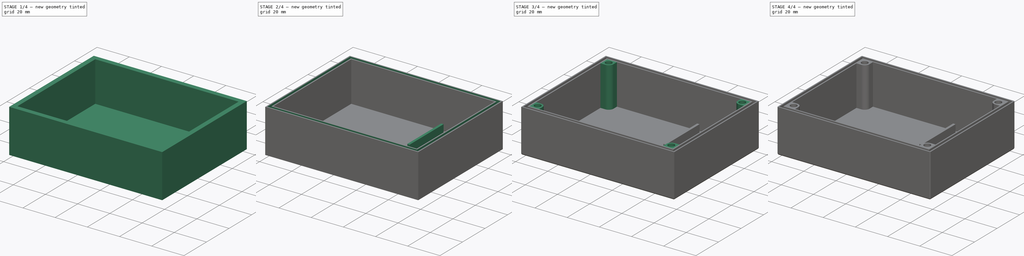
[diagram: build sequence overview — one tinted view per stage of 4, left to right]
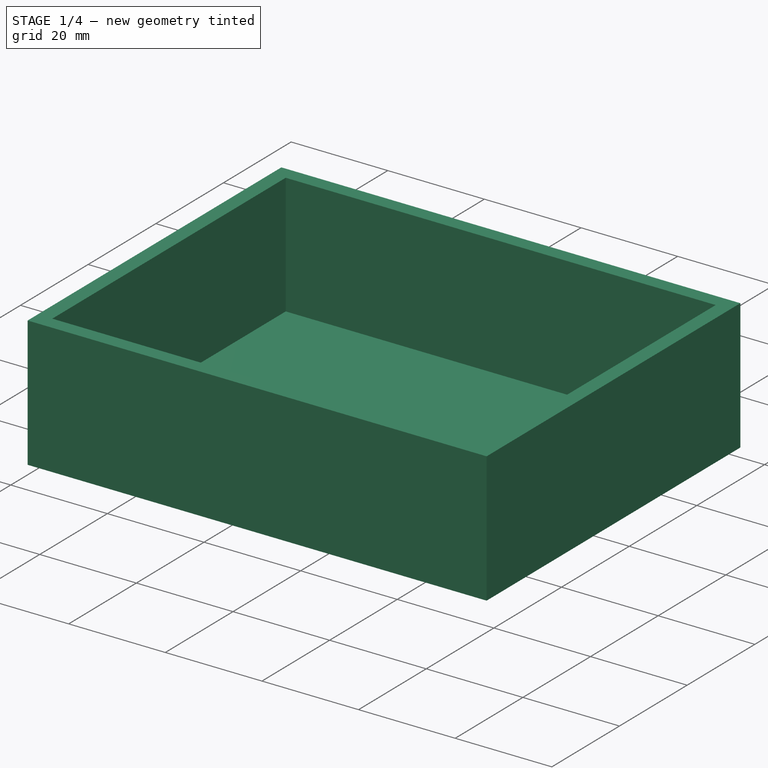
[diagram: stage 1 of 4 — iso view after this stage's code; geometry added in this stage tinted green]
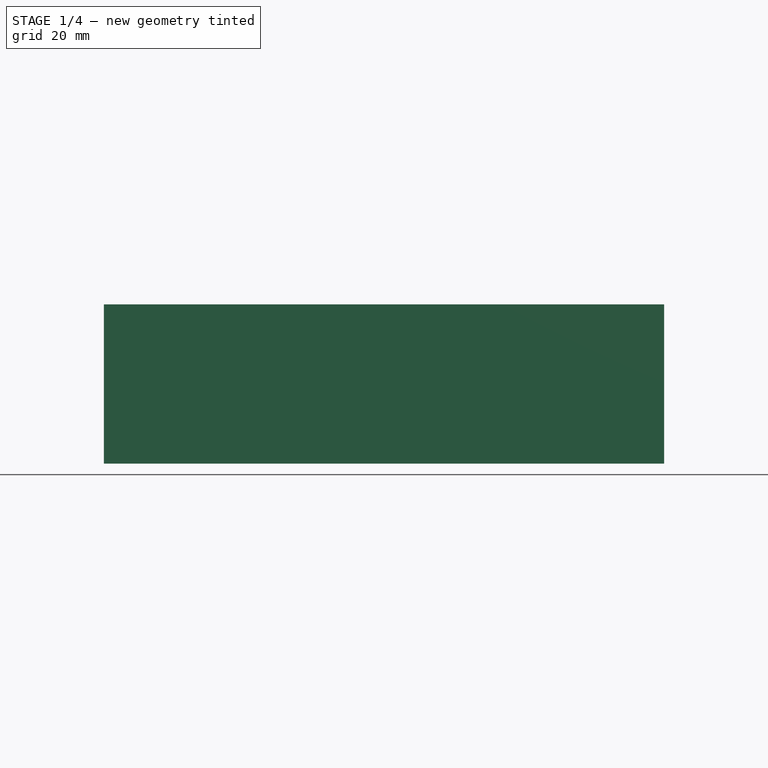
[diagram: stage 1 of 4 — front view after this stage's code; geometry added in this stage tinted green]
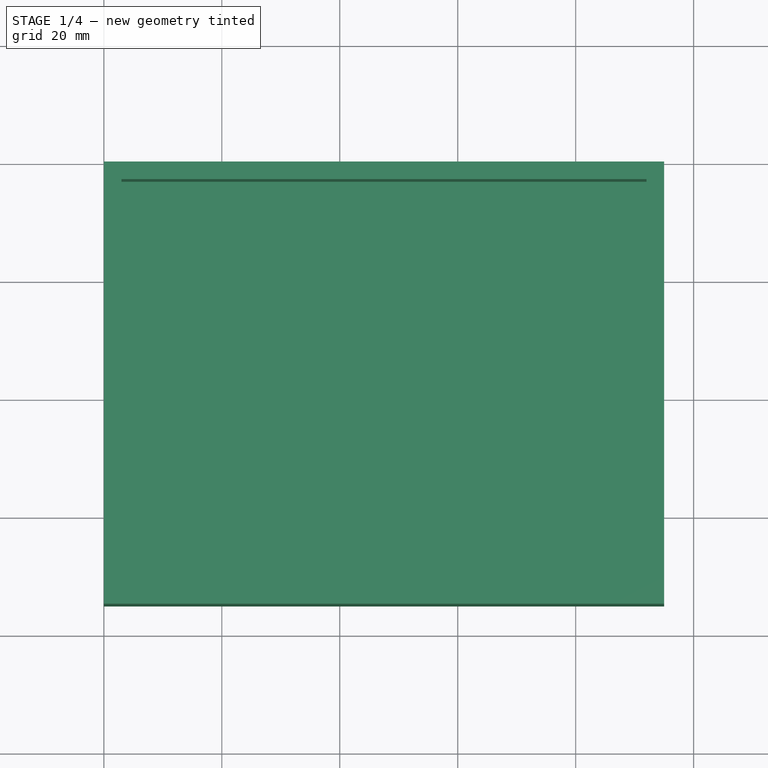
[diagram: stage 1 of 4 — top view after this stage's code; geometry added in this stage tinted green]
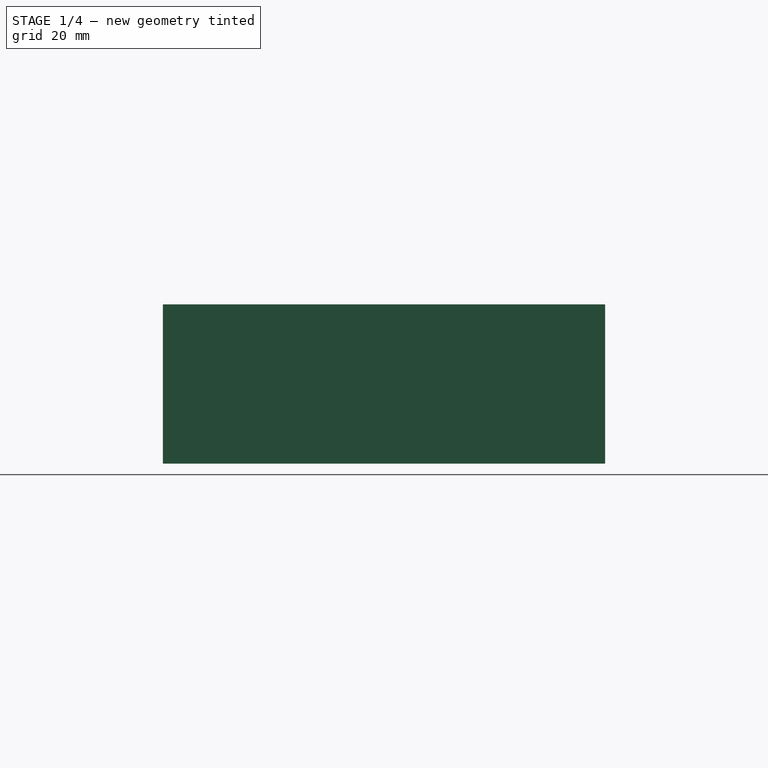
[diagram: stage 1 of 4 — right view after this stage's code; geometry added in this stage tinted green]
FCSTD DOCUMENT  (FreeCAD 0.18R16146 (Git))
Label: bottom
License: All rights reserved
LicenseURL: http://en.wikipedia.org/wiki/All_rights_reserved
objects: Sketcher::SketchObject×6, PartDesign::Pad×3, PartDesign::Pocket×3, Part::Fillet×3, PartDesign::Body×1
note: 22 computed .brp shape members not serialized (recipe doc carries the construction recipe); baked Part::Feature solids carry a one-line shape summary decoded from their .brp

FEATURE [Sketcher::SketchObject] Sketch
  MapMode = 5
  Support = -> [XY_Plane]
  sketch-geometry (4):
    g0: LineSegment StartX=0 StartY=1e-16 StartZ=0 EndX=95 EndY=1e-16 EndZ=0
    g1: LineSegment StartX=95 StartY=1e-16 StartZ=0 EndX=95 EndY=-75 EndZ=0
    g2: LineSegment StartX=95 StartY=-75 StartZ=0 EndX=0 EndY=-75 EndZ=0
    g3: LineSegment StartX=0 StartY=-75 StartZ=0 EndX=0 EndY=0 EndZ=0
  constraints (11):
    c: Coincident(g0,g1)
    c: Coincident(g1,g2)
    c: Coincident(g2,g3)
    c: Coincident(g3,g0)
    c: Horizontal(g0)
    c: Horizontal(g2)
    c: Vertical(g1)
    c: Vertical(g3)
    c: DistanceX(g0,g0) = 95
    c: DistanceY(g1,g1) = 75
    c: Coincident(g0,g-1)
FEATURE [PartDesign::Pad] Pad
  Length = 27
  Length2 = 100
  Profile = -> Sketch
  Type = 0
FEATURE [Sketcher::SketchObject] Sketch001
  ExternalGeometry = -> [Sketch]
  MapMode = 5
  Placement = pos=(0,0,27) rot=(0,0,1;0rad)
  Support = -> [Pad]
  sketch-geometry (4):
    g0: LineSegment StartX=3 StartY=-3 StartZ=0 EndX=92 EndY=-3 EndZ=0
    g1: LineSegment StartX=92 StartY=-3 StartZ=0 EndX=92 EndY=-72 EndZ=0
    g2: LineSegment StartX=92 StartY=-72 StartZ=0 EndX=3 EndY=-72 EndZ=0
    g3: LineSegment StartX=3 StartY=-72 StartZ=0 EndX=3 EndY=-3 EndZ=0
  constraints (12):
    c: Coincident(g0,g1)
    c: Coincident(g1,g2)
    c: Coincident(g2,g3)
    c: Coincident(g3,g0)
    c: Horizontal(g0)
    c: Horizontal(g2)
    c: Vertical(g1)
    c: Vertical(g3)
    c: DistanceY(g-5,g2) = 3
    c: DistanceX(g-1,g0) = 3
    c: DistanceY(g0,g-6) = 3
    c: DistanceX(g1,g-4) = 3
FEATURE [PartDesign::Pocket] Pocket
  BaseFeature = -> Pad
  Length = 25
  Length2 = 100
  Profile = -> Sketch001
  Type = 0
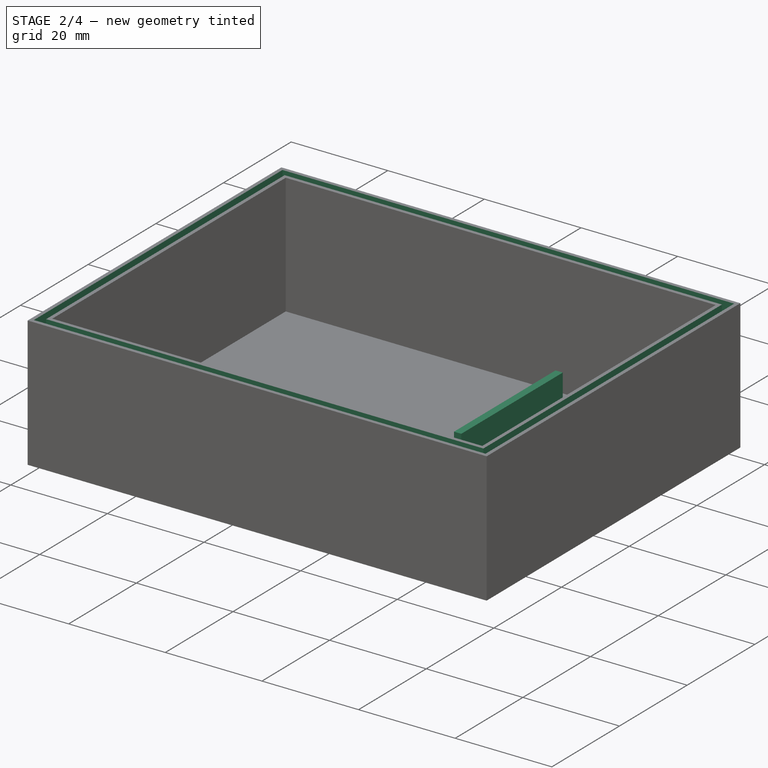
[diagram: stage 2 of 4 — iso view after this stage's code; geometry added in this stage tinted green]
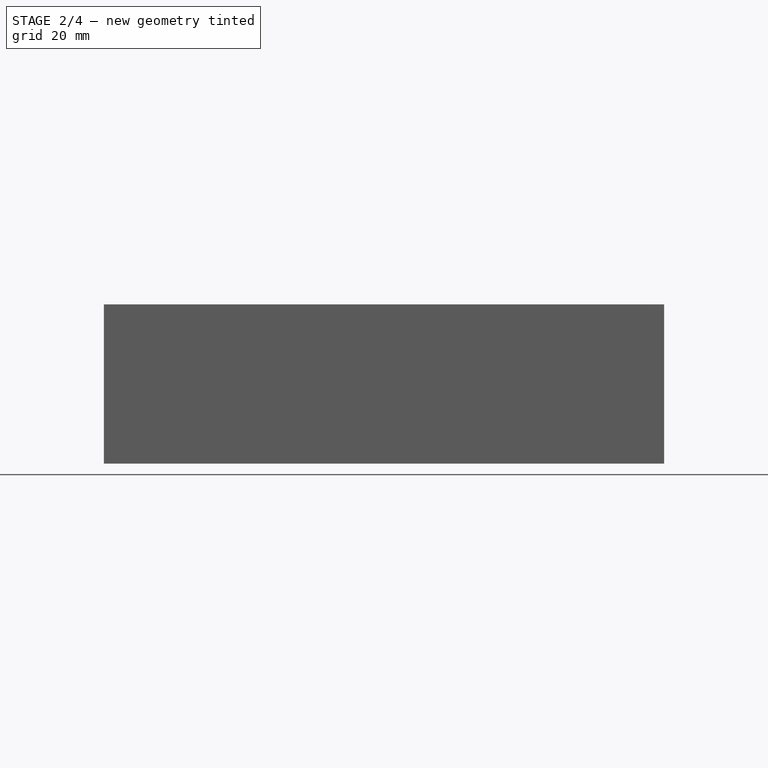
[diagram: stage 2 of 4 — front view after this stage's code; geometry added in this stage tinted green]
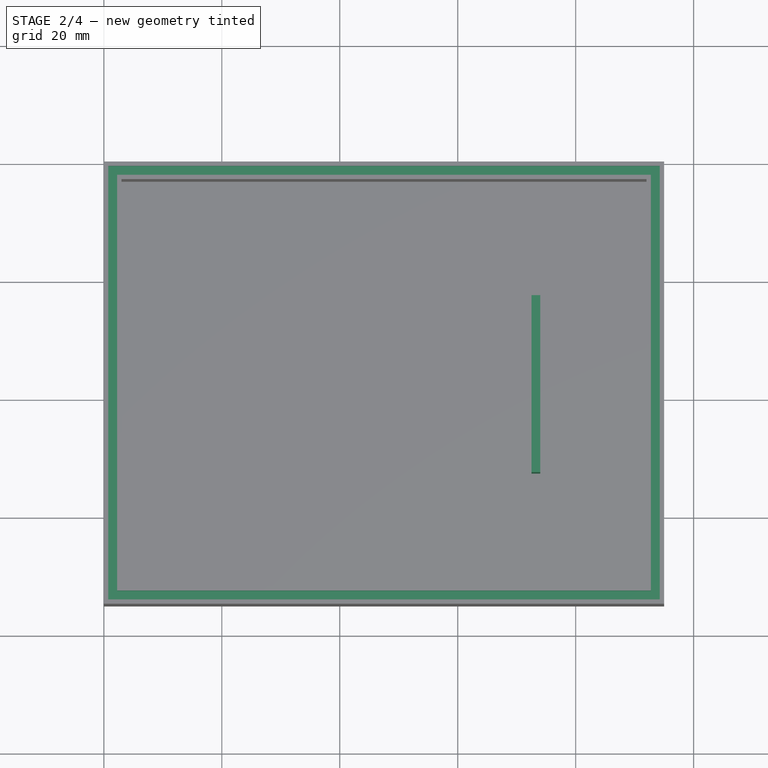
[diagram: stage 2 of 4 — top view after this stage's code; geometry added in this stage tinted green]
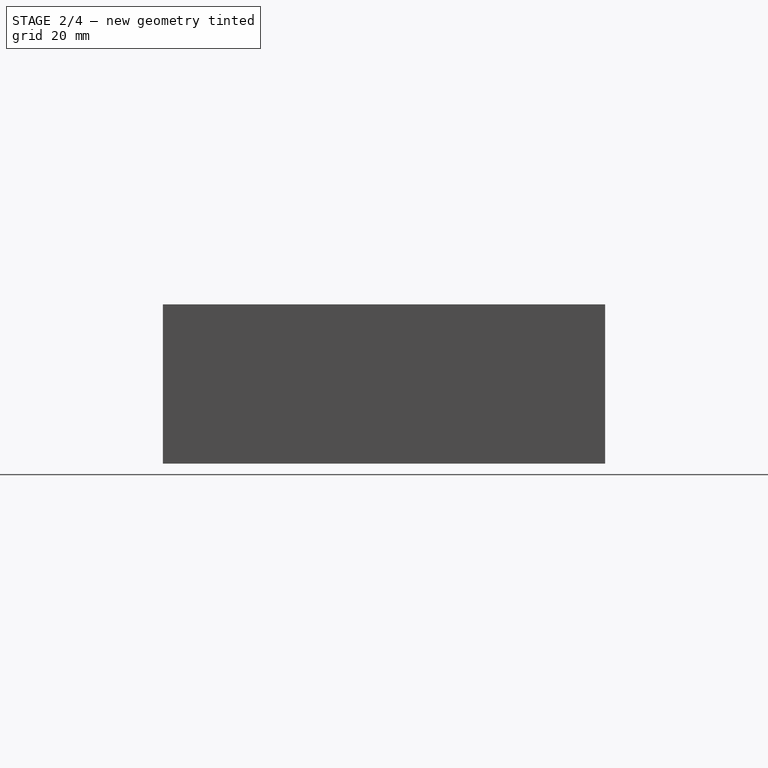
[diagram: stage 2 of 4 — right view after this stage's code; geometry added in this stage tinted green]
FEATURE [Sketcher::SketchObject] Sketch002
  ExternalGeometry = -> [Sketch001,Sketch]
  MapMode = 5
  Placement = pos=(0,0,2) rot=(0,0,1;0rad)
  Support = -> [Pocket]
  sketch-geometry (5):
    g0: LineSegment StartX=72.5 StartY=-22.5 StartZ=0 EndX=74 EndY=-22.5 EndZ=0
    g1: LineSegment StartX=74 StartY=-22.5 StartZ=0 EndX=74 EndY=-52.5 EndZ=0
    g2: LineSegment StartX=74 StartY=-52.5 StartZ=0 EndX=72.5 EndY=-52.5 EndZ=0
    g3: LineSegment StartX=72.5 StartY=-52.5 StartZ=0 EndX=72.5 EndY=-22.5 EndZ=0
    g4: LineSegment [constr] StartX=3 StartY=-37.5 StartZ=0 EndX=92 EndY=-37.5 EndZ=0
  constraints (13):
    c: Coincident(g1,g2)
    c: Coincident(g2,g3)
    c: Coincident(g3,g0)
    c: Horizontal(g0)
    c: Horizontal(g2)
    c: Vertical(g3)
    c: DistanceX(g0,g0) = 1.5
    c: DistanceY(g3,g3) = 30
    c: Symmetric(g-8,g-8,g4)
    c: Coincident(g1,g0)
    c: Symmetric(g0,g1,g4)
    c: Symmetric(g-4,g-3,g4)
    c: DistanceX(g0,g-4) = 18
FEATURE [PartDesign::Pad] Pad001
  BaseFeature = -> Pocket
  Length = 15
  Length2 = 100
  Profile = -> Sketch002
  Type = 0
FEATURE [Sketcher::SketchObject] Sketch004
  ExternalGeometry = -> [Sketch,Sketch001]
  MapMode = 5
  Placement = pos=(0,0,27) rot=(0,0,1;0rad)
  Support = -> [Pad001]
  sketch-geometry (8):
    g0: LineSegment StartX=0.75 StartY=-0.75 StartZ=0 EndX=94.25 EndY=-0.75 EndZ=0
    g1: LineSegment StartX=94.25 StartY=-0.75 StartZ=0 EndX=94.25 EndY=-74.25 EndZ=0
    g2: LineSegment StartX=94.25 StartY=-74.25 StartZ=0 EndX=0.75 EndY=-74.25 EndZ=0
    g3: LineSegment StartX=0.75 StartY=-74.25 StartZ=0 EndX=0.75 EndY=-0.75 EndZ=0
    g4: LineSegment StartX=2.25 StartY=-2.25 StartZ=0 EndX=92.75 EndY=-2.25 EndZ=0
    g5: LineSegment StartX=92.75 StartY=-2.25 StartZ=0 EndX=92.75 EndY=-72.75 EndZ=0
    g6: LineSegment StartX=92.75 StartY=-72.75 StartZ=0 EndX=2.25 EndY=-72.75 EndZ=0
    g7: LineSegment StartX=2.25 StartY=-72.75 StartZ=0 EndX=2.25 EndY=-2.25 EndZ=0
  constraints (24):
    c: Coincident(g0,g1)
    c: Coincident(g1,g2)
    c: Coincident(g2,g3)
    c: Coincident(g3,g0)
    c: Horizontal(g0)
    c: Horizontal(g2)
    c: Vertical(g1)
    c: Vertical(g3)
    c: DistanceY(g0,g-7) = 0.75
    c: DistanceX(g0,g-7) = 0.75
    c: DistanceX(g-10,g2) = 0.75
    c: DistanceY(g-10,g2) = 0.75
    c: Coincident(g4,g5)
    c: Coincident(g5,g6)
    c: Coincident(g6,g7)
    c: Coincident(g7,g4)
    c: Horizontal(g4)
    c: Horizontal(g6)
    c: Vertical(g5)
    c: Vertical(g7)
    c: DistanceY(g-6,g4) = 0.75
    c: DistanceX(g4,g-6) = 0.75
    c: DistanceX(g-9,g5) = 0.75
    c: DistanceY(g5,g-9) = 0.75
FEATURE [PartDesign::Pocket] Pocket001
  BaseFeature = -> Pad001
  Length = 2
  Length2 = 100
  Profile = -> Sketch004
  Type = 0
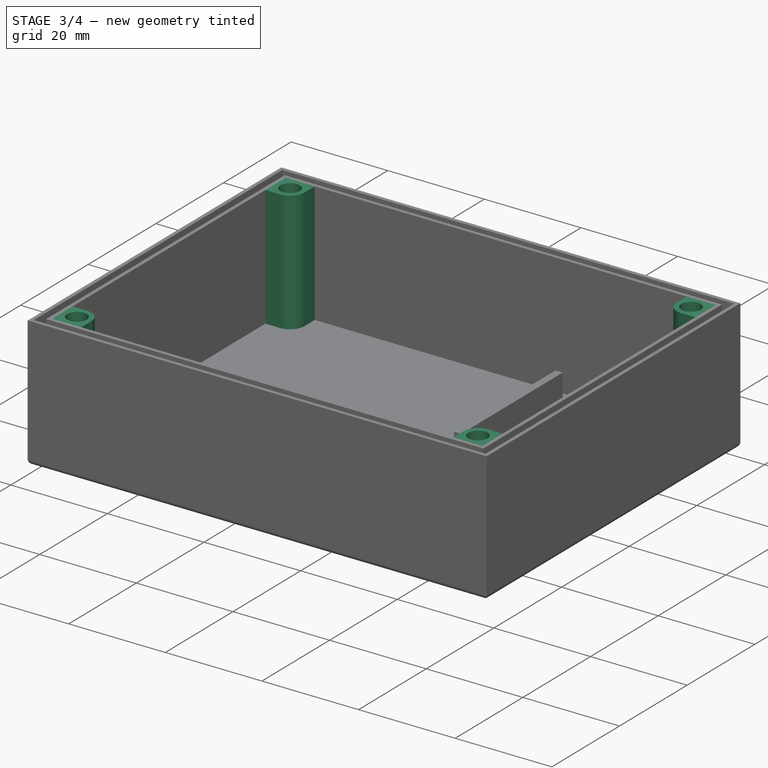
[diagram: stage 3 of 4 — iso view after this stage's code; geometry added in this stage tinted green]
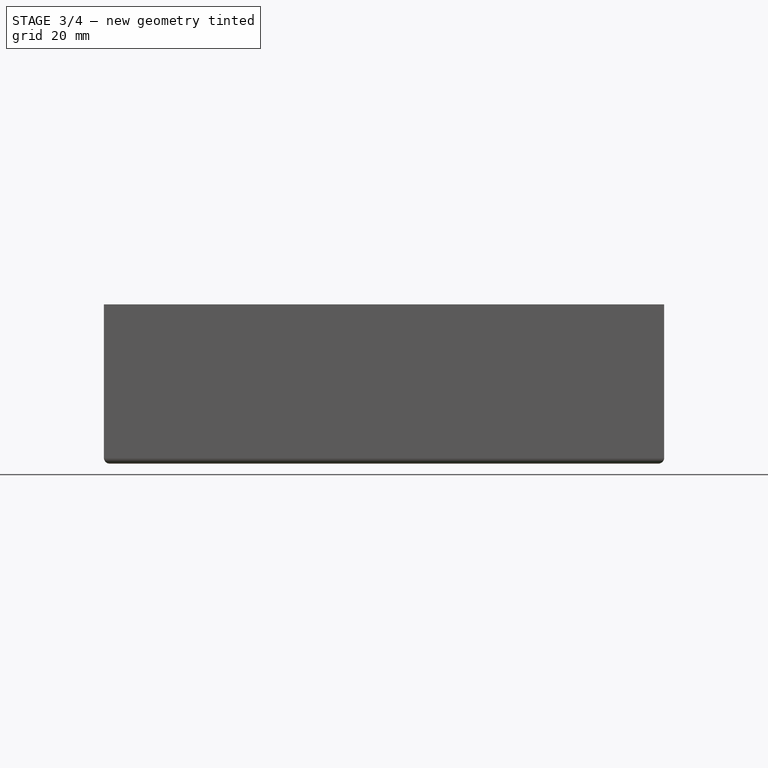
[diagram: stage 3 of 4 — front view after this stage's code; geometry added in this stage tinted green]
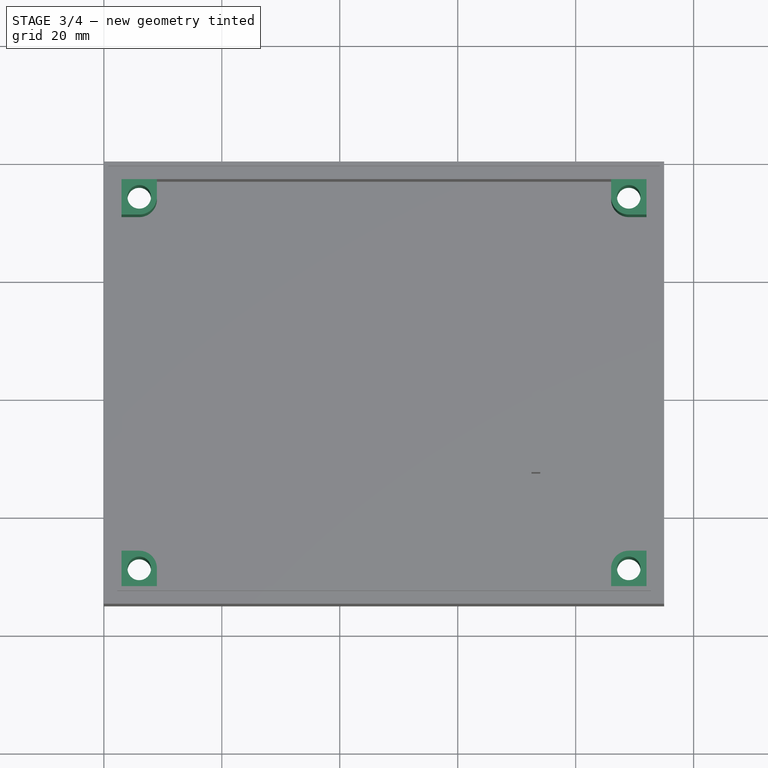
[diagram: stage 3 of 4 — top view after this stage's code; geometry added in this stage tinted green]
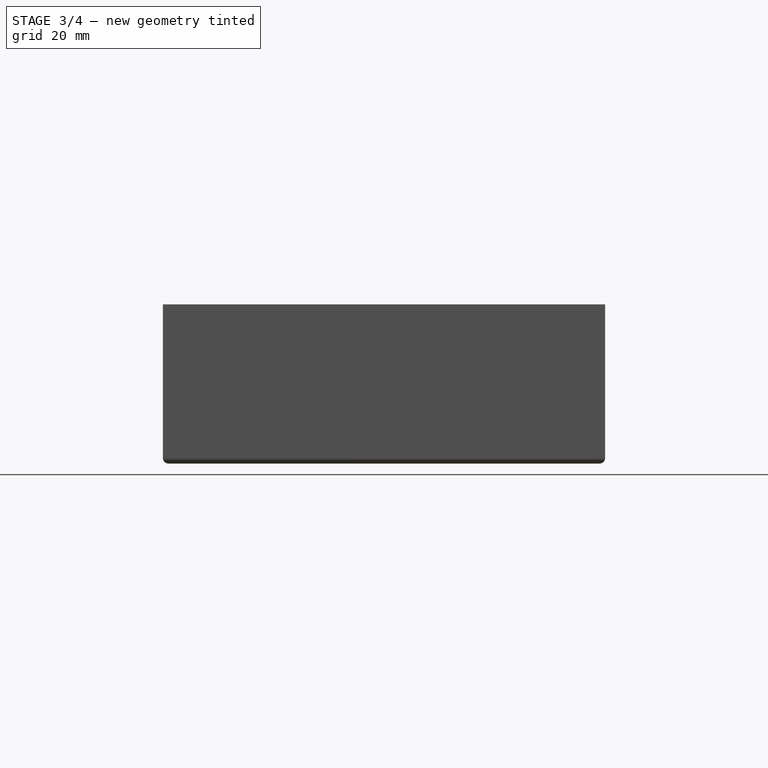
[diagram: stage 3 of 4 — right view after this stage's code; geometry added in this stage tinted green]
FEATURE [Sketcher::SketchObject] Sketch005
  ExternalGeometry = -> [Sketch004,Sketch001]
  MapMode = 5
  Placement = pos=(0,0,2) rot=(0,0,1;0rad)
  Support = -> [Pocket001]
  sketch-geometry (22):
    g0: LineSegment [constr] StartX=47.5 StartY=-0.75 StartZ=0 EndX=47.5 EndY=-74.25 EndZ=0
    g1: LineSegment [constr] StartX=0.75 StartY=-37.5 StartZ=0 EndX=94.25 EndY=-37.5 EndZ=0
    g2: ArcOfCircle CenterX=6 CenterY=-6 CenterZ=0 NormalX=0 NormalY=0 NormalZ=1 AngleXU=0 Radius=3 StartAngle=4.71239 EndAngle=6.28319
    g3: LineSegment StartX=9 StartY=-6 StartZ=0 EndX=9 EndY=-3 EndZ=0
    g4: LineSegment StartX=6 StartY=-9 StartZ=0 EndX=3 EndY=-9 EndZ=0
    g5: ArcOfCircle CenterX=89 CenterY=-6 CenterZ=0 NormalX=0 NormalY=0 NormalZ=1 AngleXU=0 Radius=3 StartAngle=3.14159 EndAngle=4.71238
    g6: LineSegment StartX=86 StartY=-6 StartZ=0 EndX=86 EndY=-3 EndZ=0
    g7: LineSegment StartX=89 StartY=-9 StartZ=0 EndX=92 EndY=-9 EndZ=0
    g8: ArcOfCircle CenterX=89 CenterY=-69 CenterZ=0 NormalX=0 NormalY=0 NormalZ=1 AngleXU=0 Radius=3 StartAngle=1.5708 EndAngle=3.14159
    g9: LineSegment StartX=86 StartY=-69 StartZ=0 EndX=86 EndY=-72 EndZ=0
    g10: LineSegment StartX=89 StartY=-66 StartZ=0 EndX=92 EndY=-66 EndZ=0
    g11: ArcOfCircle CenterX=6 CenterY=-69 CenterZ=0 NormalX=0 NormalY=0 NormalZ=1 AngleXU=0 Radius=3 StartAngle=-1.8e-15 EndAngle=1.5708
    g12: LineSegment StartX=9 StartY=-69 StartZ=0 EndX=9 EndY=-72 EndZ=0
    g13: LineSegment StartX=6 StartY=-66 StartZ=0 EndX=3 EndY=-66 EndZ=0
    g14: LineSegment StartX=3 StartY=-9 StartZ=0 EndX=3 EndY=-3 EndZ=0
    g15: LineSegment StartX=3 StartY=-3 StartZ=0 EndX=9 EndY=-3 EndZ=0
    g16: LineSegment StartX=86 StartY=-3 StartZ=0 EndX=92 EndY=-3 EndZ=0
    g17: LineSegment StartX=92 StartY=-9 StartZ=0 EndX=92 EndY=-3 EndZ=0
    g18: LineSegment StartX=86 StartY=-72 StartZ=0 EndX=92 EndY=-72 EndZ=0
    g19: LineSegment StartX=92 StartY=-66 StartZ=0 EndX=92 EndY=-72 EndZ=0
    g20: LineSegment StartX=3 StartY=-66 StartZ=0 EndX=3 EndY=-72 EndZ=0
    g21: LineSegment StartX=3 StartY=-72 StartZ=0 EndX=9 EndY=-72 EndZ=0
  constraints (66):
    c: Vertical(g0)
    c: Horizontal(g1)
    c: PointOnObject(g0,g-6)
    c: PointOnObject(g1,g-8)
    c: Symmetric(g-7,g-7,g1)
    c: Symmetric(g-8,g-7,g0)
    c: Coincident(g3,g2)
    c: Coincident(g4,g2)
    c: Vertical(g3)
    c: Horizontal(g4)
    c: PointOnObject(g3,g-11)
    c: PointOnObject(g4,g-12)
    c: DistanceX(g2,g2) = 3
    c: DistanceX(g-12,g2) = 3
    c: DistanceY(g2,g-12) = 3
    c: DistanceX(g4,g2) = 3
    c: Coincident(g6,g5)
    c: Coincident(g7,g5)
    c: Vertical(g6)
    c: Horizontal(g7)
    c: Coincident(g12,g11)
    c: Coincident(g13,g11)
    c: Vertical(g12)
    c: Horizontal(g13)
    c: Coincident(g9,g8)
    c: Coincident(g10,g8)
    c: Vertical(g9)
    c: Horizontal(g10)
    c: DistanceY(g-12,g13) = 6
    c: DistanceX(g-12,g12) = 6
    c: DistanceY(g12,g11) = 3
    c: DistanceX(g13,g11) = 3
    c: DistanceX(g11,g11) = 3
    c: PointOnObject(g13,g-12)
    c: PointOnObject(g12,g-13)
    c: PointOnObject(g9,g-13)
    c: PointOnObject(g10,g-14)
    c: DistanceX(g8,g-14) = 3
    c: DistanceY(g-14,g8) = 3
    c: DistanceY(g8,g10) = 3
    c: DistanceX(g9,g8) = 3
    c: DistanceX(g8,g10) = 3
    c: PointOnObject(g6,g-11)
    c: PointOnObject(g7,g-14)
    c: DistanceX(g5,g-15) = 3
    c: DistanceY(g5,g-15) = 3
    c: DistanceY(g5,g5) = 3
    c: DistanceX(g5,g5) = 3
    c: Coincident(g13,g20)
    c: Coincident(g20,g21)
    c: Coincident(g20,g-13)
    c: Coincident(g-12,g14)
    c: Coincident(g-12,g15)
    c: Coincident(g15,g3)
    c: Coincident(g4,g14)
    c: DistanceY(g5,g6) = 3
    c: Coincident(g16,g17)
    c: Coincident(g16,g-15)
    c: Coincident(g17,g7)
    c: Coincident(g16,g6)
    c: DistanceY(g2,g3) = 3
    c: Coincident(g18,g19)
    c: Coincident(g18,g-14)
    c: Coincident(g9,g18)
    c: Coincident(g10,g19)
    c: Coincident(g21,g12)
FEATURE [PartDesign::Pad] Pad002
  BaseFeature = -> Pocket001
  Length = 25
  Length2 = 100
  Profile = -> Sketch005
  Type = 0
FEATURE [Sketcher::SketchObject] Sketch006
  ExternalGeometry = -> [Sketch005,Sketch001]
  MapMode = 5
  Placement = pos=(0,0,27) rot=(0,0,1;0rad)
  Support = -> [Pad002]
  sketch-geometry (6):
    g0: Circle CenterX=6 CenterY=-69 CenterZ=0 NormalX=0 NormalY=0 NormalZ=1 AngleXU=0 Radius=2
    g1: LineSegment [constr] StartX=47.5 StartY=-3 StartZ=0 EndX=47.5 EndY=-72 EndZ=0
    g2: LineSegment [constr] StartX=3 StartY=-37.5 StartZ=0 EndX=92 EndY=-37.5 EndZ=0
    g3: Circle CenterX=89 CenterY=-69 CenterZ=0 NormalX=0 NormalY=0 NormalZ=1 AngleXU=0 Radius=2
    g4: Circle CenterX=89 CenterY=-6 CenterZ=0 NormalX=0 NormalY=0 NormalZ=1 AngleXU=0 Radius=2
    g5: Circle CenterX=6 CenterY=-6 CenterZ=0 NormalX=0 NormalY=0 NormalZ=1 AngleXU=0 Radius=2
  constraints (4):
    c: Radius(g0) = 2
    c: Radius(g3) = 2
    c: Radius(g5) = 2
    c: Radius(g4) = 2
FEATURE [PartDesign::Pocket] Pocket002
  BaseFeature = -> Pad002
  Length = 5
  Length2 = 100
  Profile = -> Sketch006
  Type = 1
FEATURE [PartDesign::Body] Body
  Group = -> [Sketch,Pad,Sketch001,Pocket,Sketch002,Pad001,Sketch004,Pocket001,Sketch005,Pad002,Sketch006,Pocket002]
  Origin = -> Origin
  Tip = -> Pocket002
FEATURE [Part::Fillet] Fillet
  Base = -> Pocket002
  Edges = 4 edges r=1: [Edge3,Edge6,Edge9,Edge11]
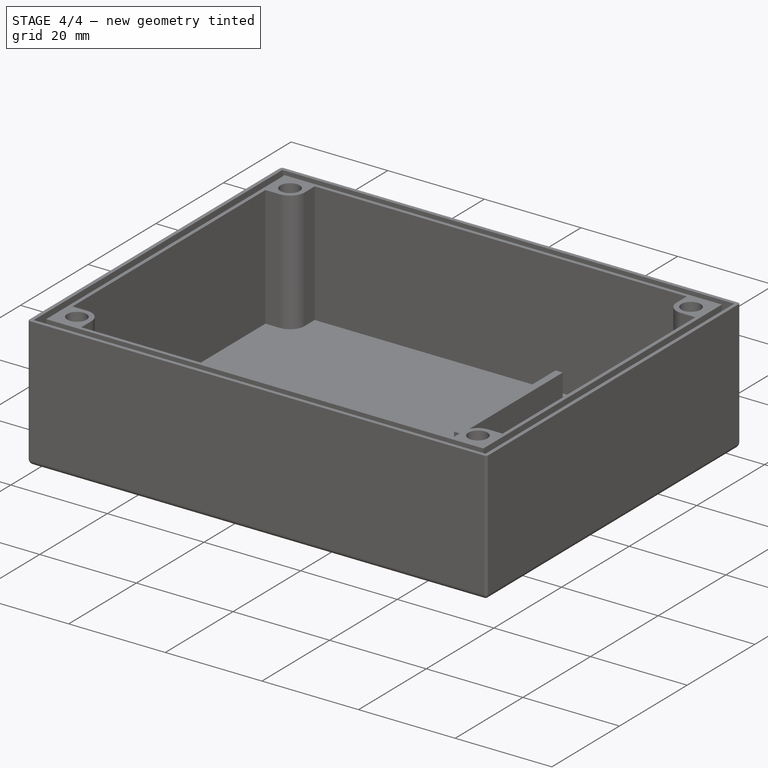
[diagram: stage 4 of 4 — iso view after this stage's code; geometry added in this stage tinted green]
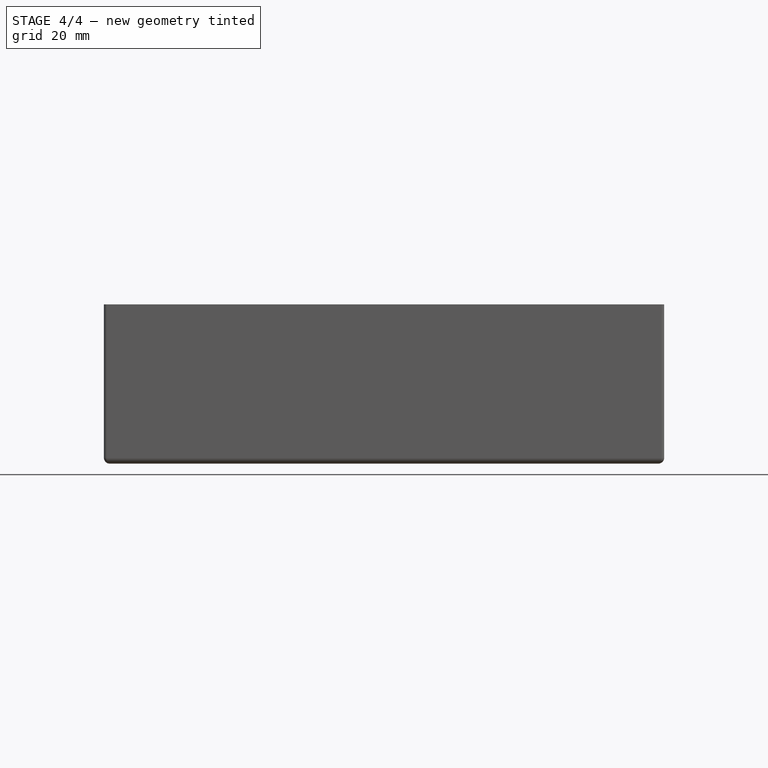
[diagram: stage 4 of 4 — front view after this stage's code; geometry added in this stage tinted green]
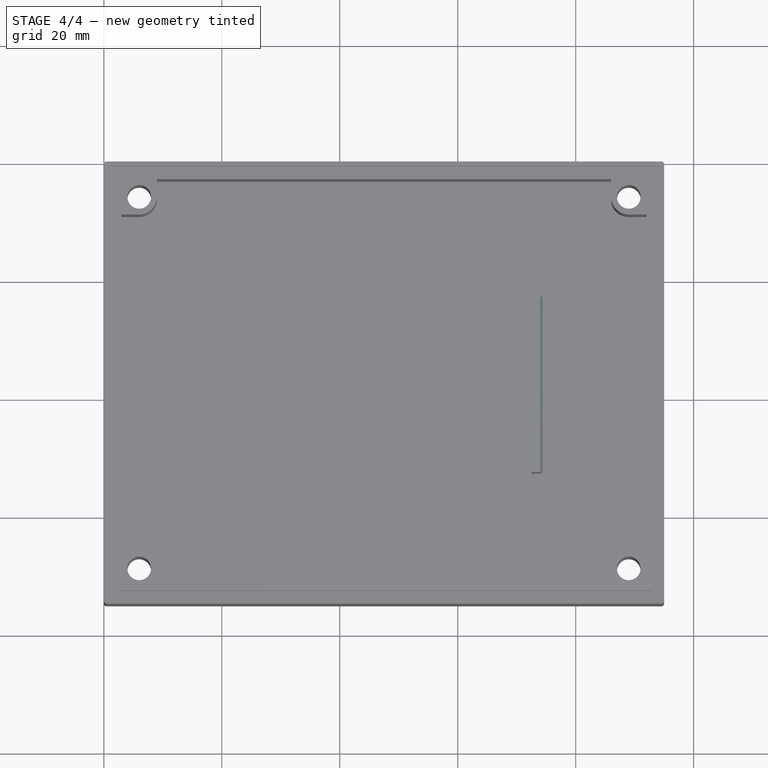
[diagram: stage 4 of 4 — top view after this stage's code; geometry added in this stage tinted green]
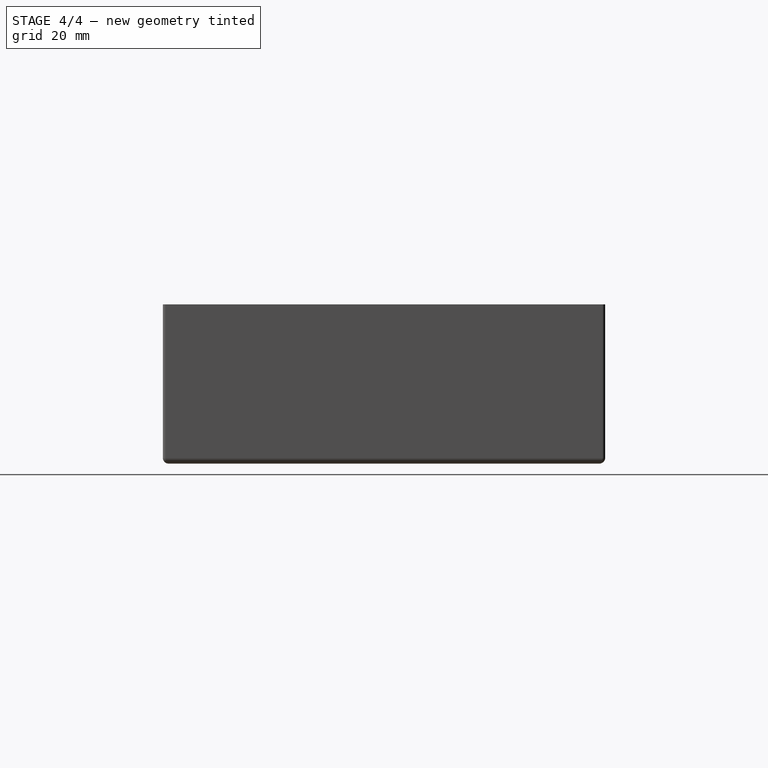
[diagram: stage 4 of 4 — right view after this stage's code; geometry added in this stage tinted green]
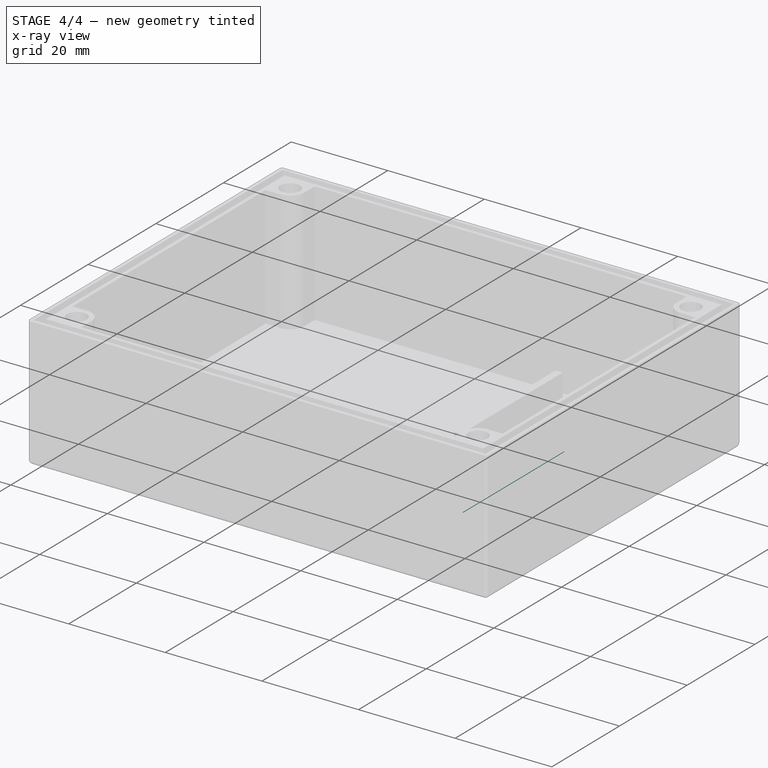
[diagram: stage 4 of 4 — x-ray composite at the iso view; earlier geometry ghosted, this stage's added geometry solid]
FEATURE [Part::Fillet] Fillet001
  Base = -> Fillet
  Edges = 4 edges r=0.5: [Edge1,Edge4,Edge5,Edge18]
FEATURE [Part::Fillet] Fillet002
  Base = -> Fillet001
  Edges = 1 edges r=1: [Edge135]
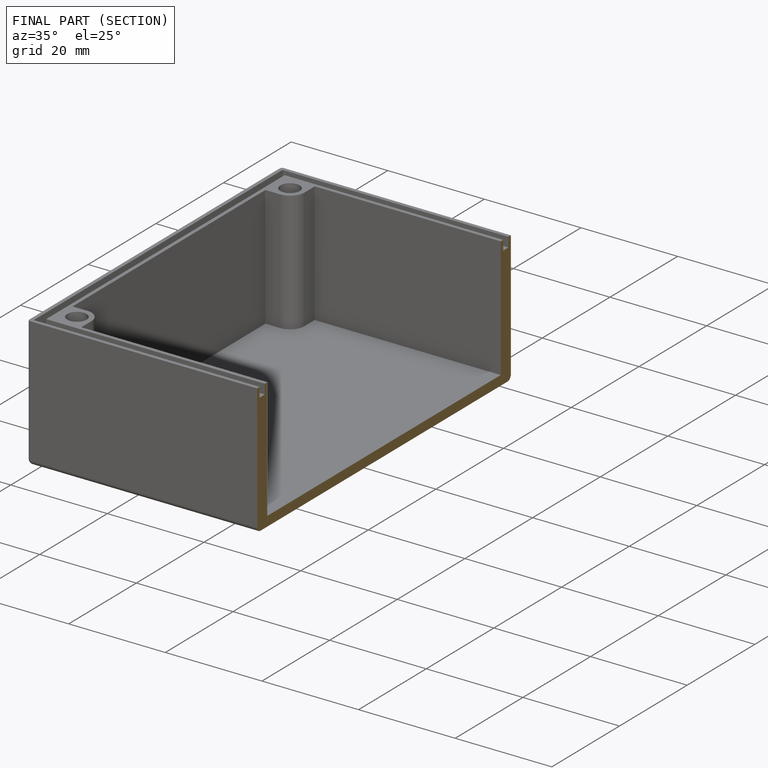
[diagram: finished part — half-section view (interior)]
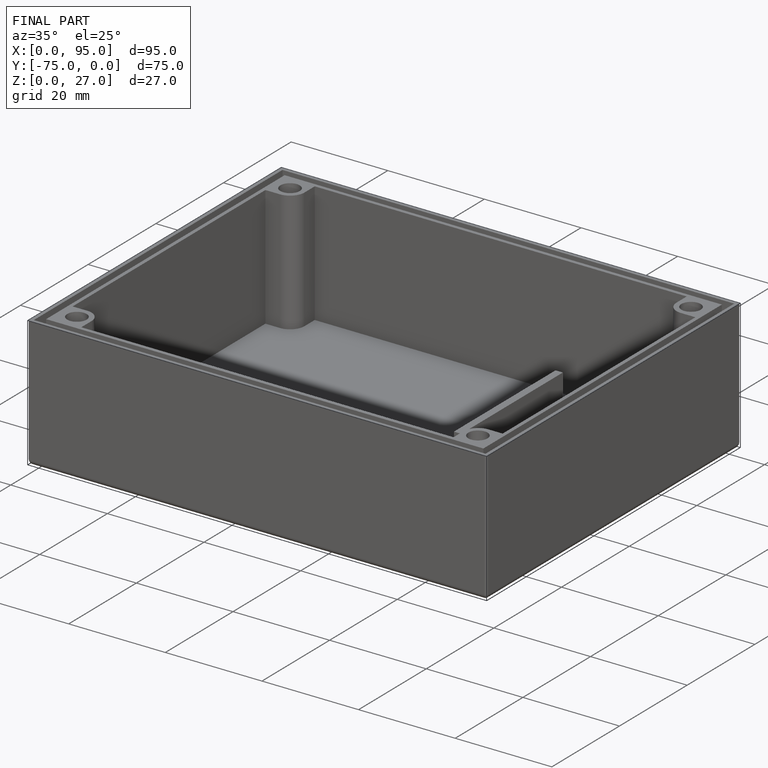
[diagram: finished part — iso view with bounding-box wireframe]
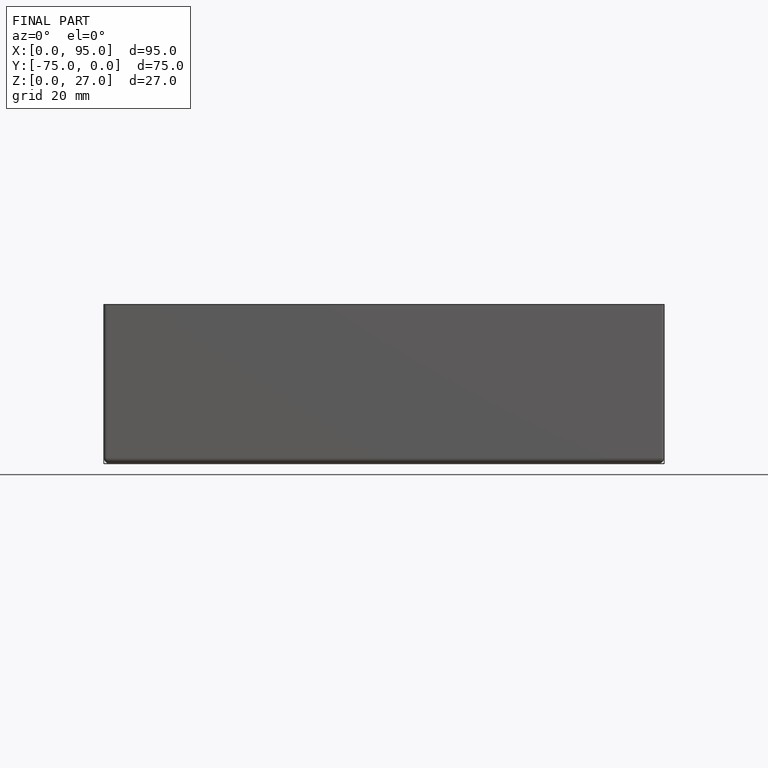
[diagram: finished part — front view with bounding-box wireframe]
